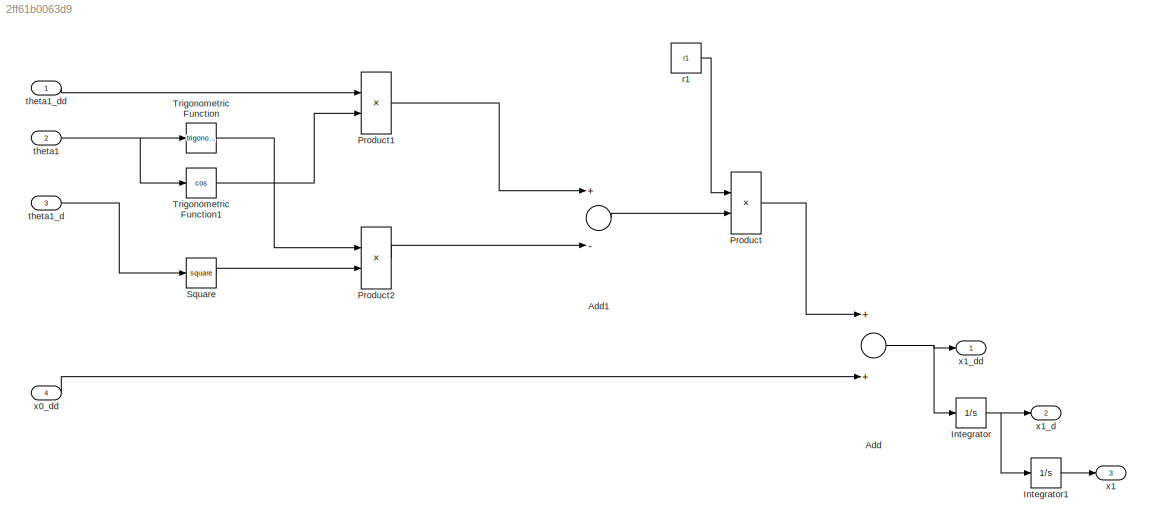
MODEL slx_2ff61b0063d9
KIND model
CONFIG AbsTol = auto
CONFIG EnableMultiTasking = off
CONFIG FixedStep = auto
CONFIG MaxStep = auto
CONFIG MinStep = auto
CONFIG RelTol = 1e-3
CONFIG SampleTimeConstraint = Unconstrained
CONFIG Solver = VariableStepAuto
CONFIG SolverName = VariableStepAuto
CONFIG StartTime = 0.0
CONFIG StopTime = 10.0
BLOCK [Sum] Add
  InputSameDT = off
  OutDataTypeStr = Inherit: Inherit via internal rule
  Ports = [2, 1]
  SaturateOnIntegerOverflow = off
BLOCK [Sum] Add1
  InputSameDT = off
  Inputs = +-
  OutDataTypeStr = Inherit: Inherit via internal rule
  Ports = [2, 1]
  SaturateOnIntegerOverflow = off
BLOCK [Integrator] Integrator
  InitialCondition = ini_x1_d
  Ports = [1, 1]
BLOCK [Integrator] Integrator1
  InitialCondition = ini_x1
  Ports = [1, 1]
BLOCK [Product] Product
  InputSameDT = off
  OutDataTypeStr = Inherit: Inherit via internal rule
  Ports = [2, 1]
  RndMeth = Floor
  SaturateOnIntegerOverflow = off
BLOCK [Product] Product1
  InputSameDT = off
  OutDataTypeStr = Inherit: Inherit via internal rule
  Ports = [2, 1]
  RndMeth = Floor
  SaturateOnIntegerOverflow = off
BLOCK [Product] Product2
  InputSameDT = off
  OutDataTypeStr = Inherit: Inherit via internal rule
  Ports = [2, 1]
  RndMeth = Floor
  SaturateOnIntegerOverflow = off
BLOCK [Math] Square
  Operator = square
  Ports = [1, 1]
  SignedPower = off
BLOCK [Trigonometry] Trigonometric Function
  Ports = [1, 1]
BLOCK [Trigonometry] Trigonometric Function1
  Operator = cos
  Ports = [1, 1]
BLOCK [Constant] r1
  Value = r1
BLOCK [Inport] theta1
  IconDisplay = Port number
  Port = 2
BLOCK [Inport] theta1_d
  IconDisplay = Port number
  Port = 3
BLOCK [Inport] theta1_dd 
  IconDisplay = Port number
BLOCK [Inport] x0_dd
  IconDisplay = Port number
  Port = 4
BLOCK [Outport] x1
  IconDisplay = Port number
  Port = 3
BLOCK [Outport] x1_d
  IconDisplay = Port number
  Port = 2
BLOCK [Outport] x1_dd
  IconDisplay = Port number
LINE Add1:1 -> Product:2
NET Add:1 -> Integrator:1, x1_dd:1
LINE Integrator1:1 -> x1:1
NET Integrator:1 -> Integrator1:1, x1_d:1
LINE Product1:1 -> Add1:1
LINE Product2:1 -> Add1:2
LINE Product:1 -> Add:1
LINE Square:1 -> Product2:2
LINE Trigonometric Function1:1 -> Product1:2
LINE Trigonometric Function:1 -> Product2:1
LINE r1:1 -> Product:1
NET theta1:1 -> Trigonometric Function1:1, Trigonometric Function:1
LINE theta1_d:1 -> Square:1
LINE theta1_dd :1 -> Product1:1
LINE x0_dd:1 -> Add:2
note: NET lines group one-source signal fan-out (src -> all destinations, sorted); 1:1 wires keep LINE
